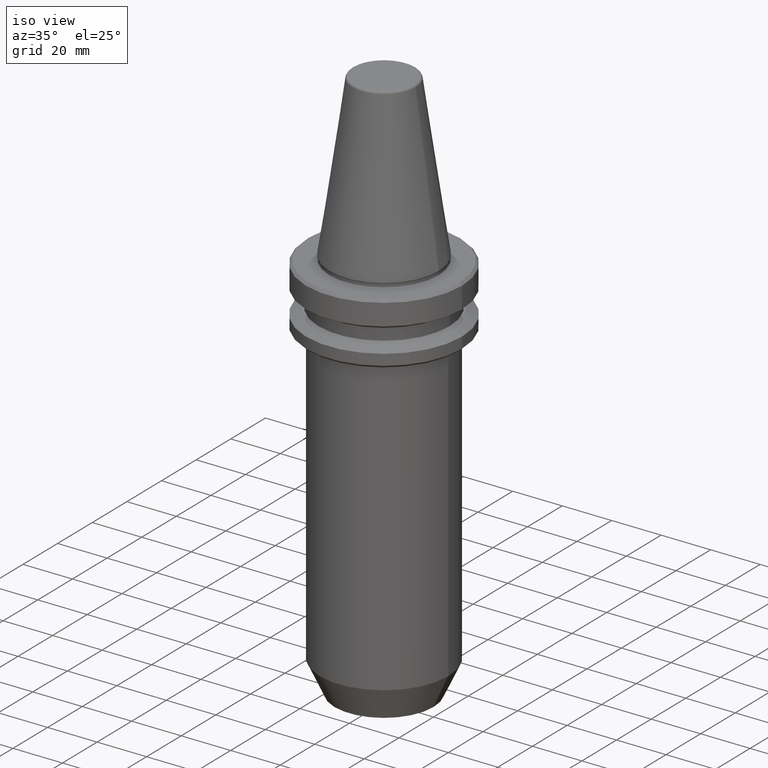
[diagram: clean part render]
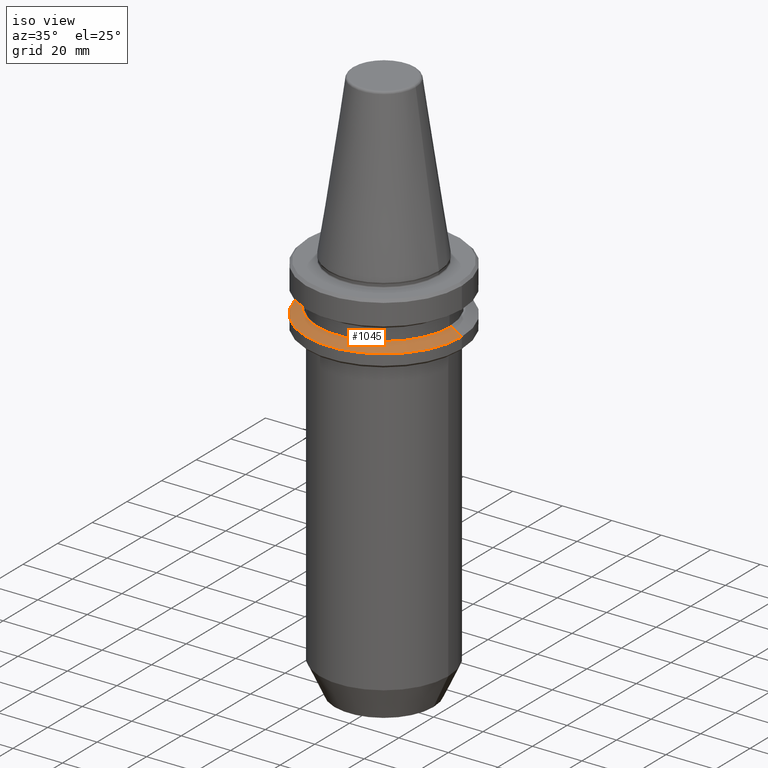
[diagram: same view with one face highlighted and labeled with its STEP entity id]
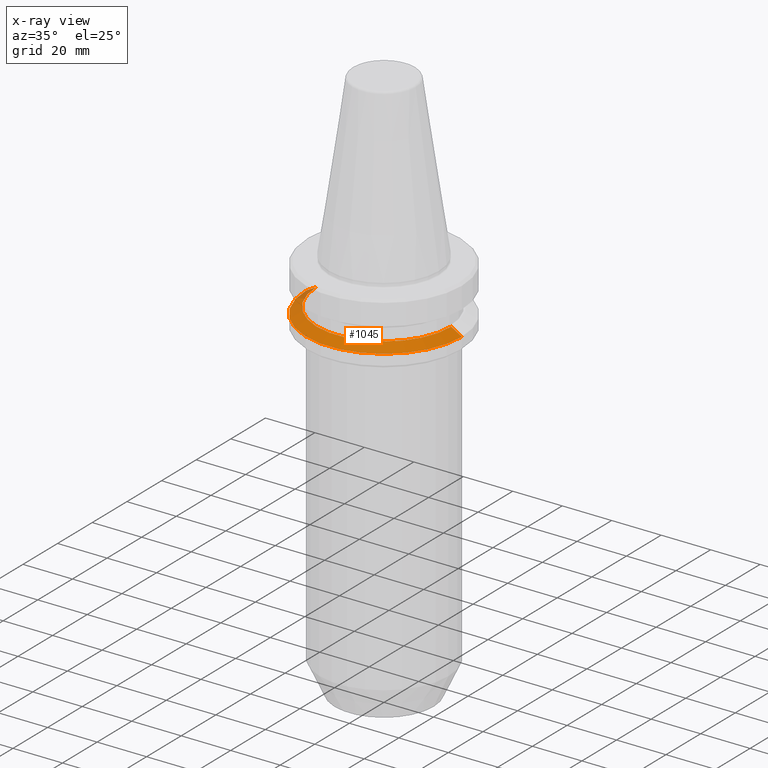
[diagram: x-ray of the same camera — body ghosted, the highlighted face saturated]
A machine part, iso view. The second image highlights one B-rep face of the part: STEP entity #1045.
The next image is the same camera in x-ray: the body ghosted, the highlighted face saturated — about 3% of this face is hidden behind the body in this view.
In plain terms, the highlighted conical surface has half-angle 60 deg.
Its self-contained STEP definition (entity closure, byte-faithful):
#62 = CARTESIAN_POINT ( 'NONE',  ( 0.0000000000000000000, 0.0000000000000000000, -18.41128678844344800 ) ) ;
#74 = DIRECTION ( 'NONE',  ( 0.0000000000000000000, 0.0000000000000000000, -1.000000000000000000 ) ) ;
#75 = CONICAL_SURFACE ( 'NONE', #903, 31.50000000000019500, 1.047197551196600500 ) ;
#81 = ORIENTED_EDGE ( 'NONE', *, *, #847, .F. ) ;
#96 = FACE_OUTER_BOUND ( 'NONE', #867, .T. ) ;
#132 = DIRECTION ( 'NONE',  ( 1.000000000000000000, 0.0000000000000000000, 0.0000000000000000000 ) ) ;
#143 = AXIS2_PLACEMENT_3D ( 'NONE', #62, #646, #132 ) ;
#146 = EDGE_CURVE ( 'NONE', #660, #585, #780, .T. ) ;
#157 = CARTESIAN_POINT ( 'NONE',  ( 31.50000000000019500, 0.0000000000000000000, -20.91142879476059900 ) ) ;
#180 = CIRCLE ( 'NONE', #143, 27.16962701892167300 ) ;
#187 = CARTESIAN_POINT ( 'NONE',  ( -31.50000000000019500, 3.857637417314186400E-015, -20.91142879476059900 ) ) ;
#237 = CIRCLE ( 'NONE', #555, 31.50000000000019500 ) ;
#238 = CARTESIAN_POINT ( 'NONE',  ( 0.0000000000000000000, 0.0000000000000000000, -20.91142879476059900 ) ) ;
#269 = VECTOR ( 'NONE', #943, 1000.000000000000000 ) ;
#320 = DIRECTION ( 'NONE',  ( -1.000000000000000000, 0.0000000000000000000, 0.0000000000000000000 ) ) ;
#350 = LINE ( 'NONE', #456, #269 ) ;
#365 = DIRECTION ( 'NONE',  ( -0.0000000000000000000, -0.0000000000000000000, 1.000000000000000000 ) ) ;
#456 = CARTESIAN_POINT ( 'NONE',  ( 31.50000000000019500, 3.857637417314186400E-015, -20.91142879476059900 ) ) ;
#555 = AXIS2_PLACEMENT_3D ( 'NONE', #873, #365, #945 ) ;
#560 = CARTESIAN_POINT ( 'NONE',  ( -27.16962701892167300, 0.0000000000000000000, -18.41128678844344800 ) ) ;
#581 = VERTEX_POINT ( 'NONE', #699 ) ;
#585 = VERTEX_POINT ( 'NONE', #187 ) ;
#617 = EDGE_CURVE ( 'NONE', #581, #1039, #350, .T. ) ;
#646 = DIRECTION ( 'NONE',  ( -0.0000000000000000000, -0.0000000000000000000, 1.000000000000000000 ) ) ;
#650 = EDGE_CURVE ( 'NONE', #585, #1039, #237, .T. ) ;
#660 = VERTEX_POINT ( 'NONE', #560 ) ;
#693 = ORIENTED_EDGE ( 'NONE', *, *, #617, .F. ) ;
#699 = CARTESIAN_POINT ( 'NONE',  ( 27.16962701892167300, 3.592478546794586600E-015, -18.41128678844344800 ) ) ;
#700 = ORIENTED_EDGE ( 'NONE', *, *, #146, .T. ) ;
#780 = LINE ( 'NONE', #907, #784 ) ;
#784 = VECTOR ( 'NONE', #994, 1000.000000000000000 ) ;
#847 = EDGE_CURVE ( 'NONE', #660, #581, #180, .T. ) ;
#867 = EDGE_LOOP ( 'NONE', ( #693, #81, #700, #877 ) ) ;
#873 = CARTESIAN_POINT ( 'NONE',  ( 0.0000000000000000000, 0.0000000000000000000, -20.91142879476059900 ) ) ;
#877 = ORIENTED_EDGE ( 'NONE', *, *, #650, .T. ) ;
#903 = AXIS2_PLACEMENT_3D ( 'NONE', #238, #74, #320 ) ;
#907 = CARTESIAN_POINT ( 'NONE',  ( -31.50000000000019500, 0.0000000000000000000, -20.91142879476059900 ) ) ;
#943 = DIRECTION ( 'NONE',  ( 0.8660254037844400400, 1.060575238724908600E-016, -0.4999999999999976100 ) ) ;
#945 = DIRECTION ( 'NONE',  ( 1.000000000000000000, 0.0000000000000000000, 0.0000000000000000000 ) ) ;
#994 = DIRECTION ( 'NONE',  ( -0.8660254037844400400, 0.0000000000000000000, -0.4999999999999976100 ) ) ;
#1039 = VERTEX_POINT ( 'NONE', #157 ) ;
#1045 = ADVANCED_FACE ( 'NONE', ( #96 ), #75, .T. ) ;